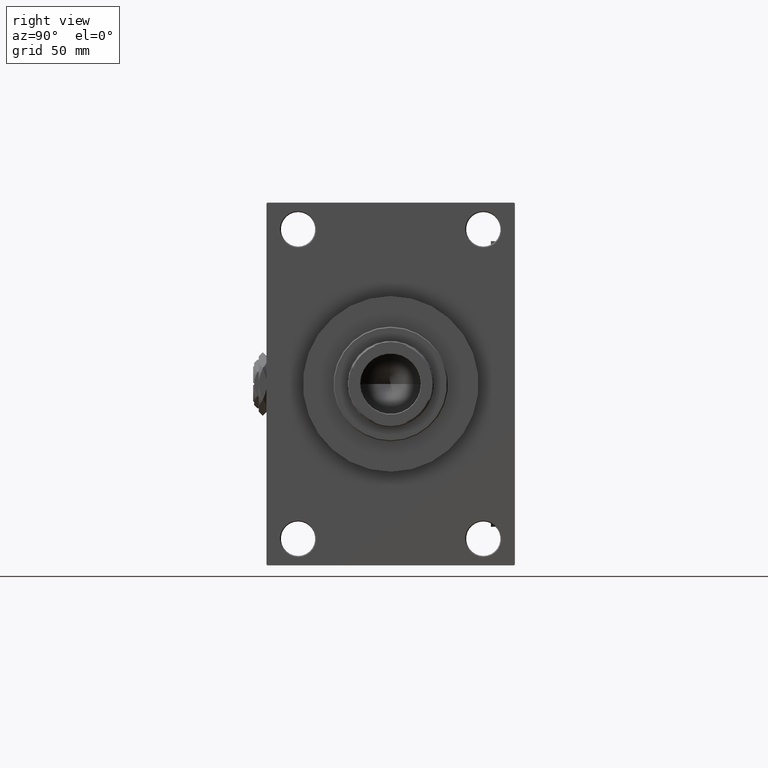
[diagram: clean part render]
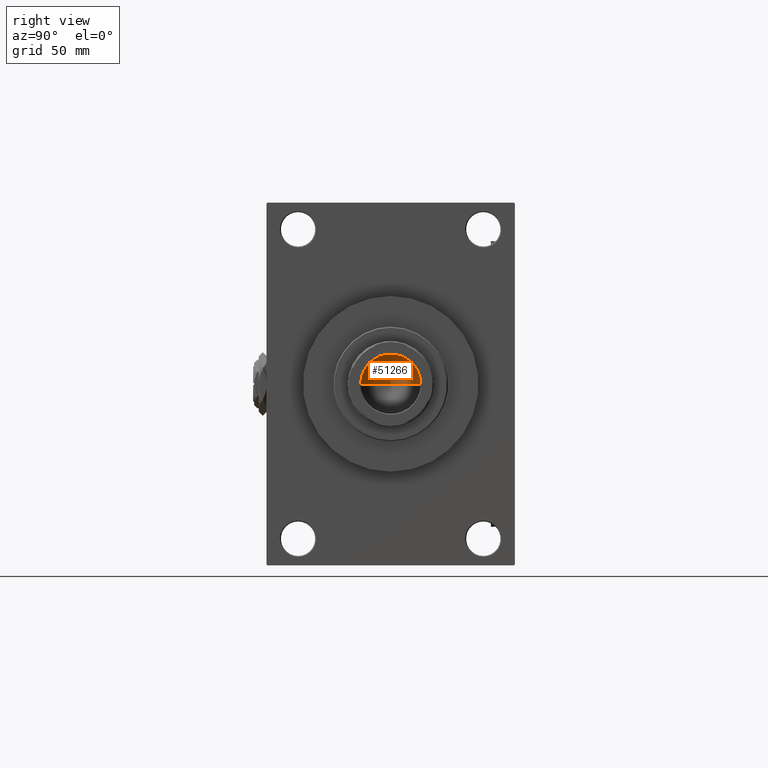
[diagram: same view with one face highlighted and labeled with its STEP entity id]
A machine part, right view. The second image highlights one B-rep face of the part: STEP entity #51266.
In plain terms, the highlighted conical surface has half-angle 59 deg.
Its self-contained STEP definition (entity closure, byte-faithful):
#2014 = VECTOR ( 'NONE', #11400, 1000.000000000000000 ) ;
#4102 = EDGE_CURVE ( 'NONE', #21597, #19153, #48754, .T. ) ;
#6176 = ORIENTED_EDGE ( 'NONE', *, *, #42333, .F. ) ;
#11400 = DIRECTION ( 'NONE',  ( -0.8571673007021112234, 1.049727191138617340E-16, 0.5150380749100560429 ) ) ;
#12591 = CARTESIAN_POINT ( 'NONE',  ( 15.74999999999998934, 0.000000000000000000, 183.0000000000000000 ) ) ;
#13289 = AXIS2_PLACEMENT_3D ( 'NONE', #13667, #29948, #13416 ) ;
#13416 = DIRECTION ( 'NONE',  ( 1.000000000000000000, 0.000000000000000000, 0.000000000000000000 ) ) ;
#13667 = CARTESIAN_POINT ( 'NONE',  ( 0.000000000000000000, 0.000000000000000000, 183.0000000000000000 ) ) ;
#19153 = VERTEX_POINT ( 'NONE', #12591 ) ;
#20307 = CARTESIAN_POINT ( 'NONE',  ( -15.74999999999998934, 1.928818708657080161E-15, 183.0000000000000000 ) ) ;
#20612 = VECTOR ( 'NONE', #50685, 1000.000000000000000 ) ;
#20825 = DIRECTION ( 'NONE',  ( -0.000000000000000000, -0.000000000000000000, 1.000000000000000000 ) ) ;
#21081 = CARTESIAN_POINT ( 'NONE',  ( 0.000000000000000000, 0.000000000000000000, 183.0000000000000000 ) ) ;
#21597 = VERTEX_POINT ( 'NONE', #33551 ) ;
#22026 = EDGE_CURVE ( 'NONE', #42488, #21597, #47414, .T. ) ;
#22695 = ORIENTED_EDGE ( 'NONE', *, *, #22026, .T. ) ;
#28456 = DIRECTION ( 'NONE',  ( 1.000000000000000000, 0.000000000000000000, 0.000000000000000000 ) ) ;
#29948 = DIRECTION ( 'NONE',  ( -0.000000000000000000, -0.000000000000000000, 1.000000000000000000 ) ) ;
#31119 = AXIS2_PLACEMENT_3D ( 'NONE', #21081, #20825, #28456 ) ;
#33551 = CARTESIAN_POINT ( 'NONE',  ( -15.74999999999998934, 1.928818708657080161E-15, 183.0000000000000000 ) ) ;
#39309 = CONICAL_SURFACE ( 'NONE', #13289, 15.74999999999998934, 1.029744258676652313 ) ;
#41592 = EDGE_LOOP ( 'NONE', ( #6176, #22695, #45385 ) ) ;
#42333 = EDGE_CURVE ( 'NONE', #42488, #19153, #43046, .T. ) ;
#42488 = VERTEX_POINT ( 'NONE', #48801 ) ;
#43046 = LINE ( 'NONE', #46992, #20612 ) ;
#45385 = ORIENTED_EDGE ( 'NONE', *, *, #4102, .T. ) ;
#46992 = CARTESIAN_POINT ( 'NONE',  ( 15.74999999999998934, 0.000000000000000000, 183.0000000000000000 ) ) ;
#47414 = LINE ( 'NONE', #20307, #2014 ) ;
#48754 = CIRCLE ( 'NONE', #31119, 15.74999999999998934 ) ;
#48801 = CARTESIAN_POINT ( 'NONE',  ( -1.584115414415908206E-14, 0.000000000000000000, 173.5364452503158930 ) ) ;
#49161 = FACE_OUTER_BOUND ( 'NONE', #41592, .T. ) ;
#50685 = DIRECTION ( 'NONE',  ( 0.8571673007021112234, 0.000000000000000000, 0.5150380749100560429 ) ) ;
#51266 = ADVANCED_FACE ( 'NONE', ( #49161 ), #39309, .F. ) ;